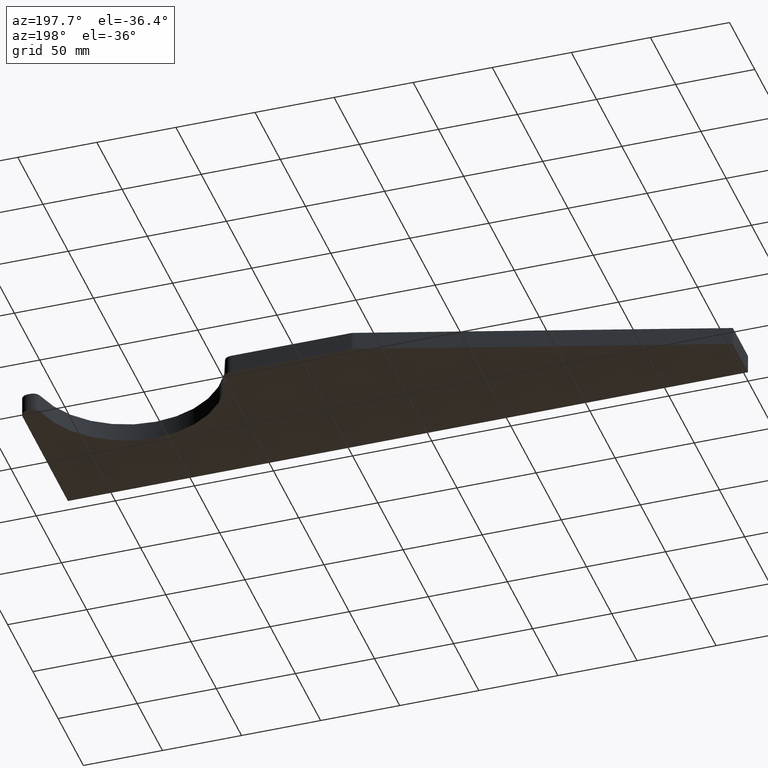
[diagram: clean part render]
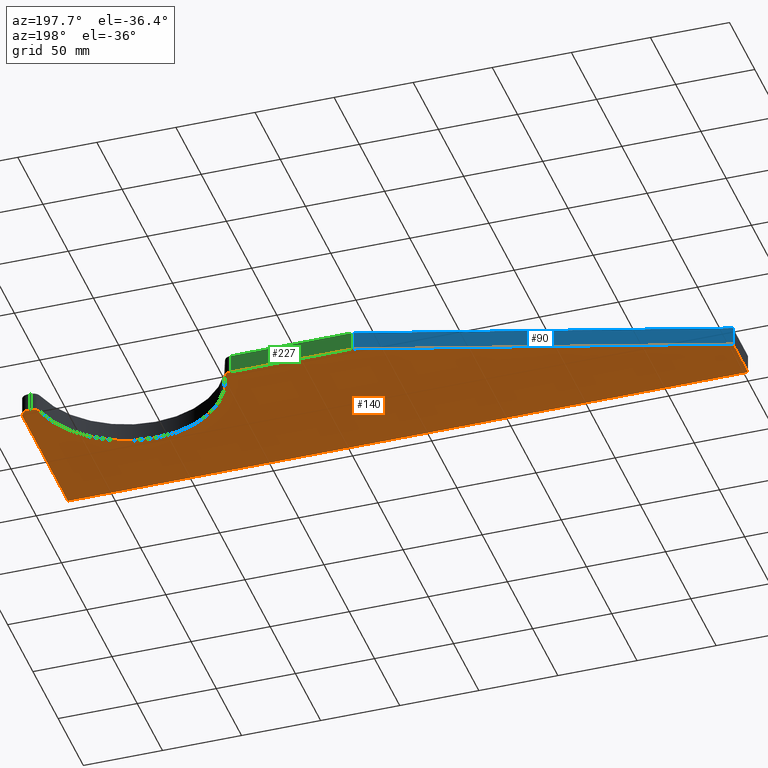
[diagram: same view with three faces highlighted in distinct colors, each labeled with its STEP entity id]
A machine part, auxiliary view with three faces highlighted in distinct colors.
Their STEP definitions:

[orange] entity #140 — the highlighted planar face has unit normal (0, 0, 1).
#1 = CARTESIAN_POINT ( 'NONE',  ( 220.7231842260838200, 89.99999999999997200, -6.000000000000000000 ) ) ;
#6 = CARTESIAN_POINT ( 'NONE',  ( 219.3064535209968000, 94.79508854029447200, -6.000000000000000000 ) ) ;
#11 = AXIS2_PLACEMENT_3D ( 'NONE', #428, #423, #422 ) ;
#16 = EDGE_CURVE ( 'NONE', #125, #181, #297, .T. ) ;
#20 = AXIS2_PLACEMENT_3D ( 'NONE', #137, #135, #131 ) ;
#22 = DIRECTION ( 'NONE',  ( -1.000000000000000000, 0.0000000000000000000, 0.0000000000000000000 ) ) ;
#30 = DIRECTION ( 'NONE',  ( 1.000000000000000000, 0.0000000000000000000, 0.0000000000000000000 ) ) ;
#33 = CARTESIAN_POINT ( 'NONE',  ( 0.0000000000000000000, 0.0000000000000000000, -6.000000000000000000 ) ) ;
#37 = CARTESIAN_POINT ( 'NONE',  ( 430.0000000000000000, 0.0000000000000000000, -6.000000000000000000 ) ) ;
#41 = EDGE_CURVE ( 'NONE', #181, #332, #342, .T. ) ;
#43 = CARTESIAN_POINT ( 'NONE',  ( 300.8392021690038400, 94.99999999999997200, -6.000000000000000000 ) ) ;
#51 = DIRECTION ( 'NONE',  ( 0.0000000000000000000, 0.0000000000000000000, 1.000000000000000000 ) ) ;
#60 = EDGE_CURVE ( 'NONE', #175, #193, #398, .T. ) ;
#78 = DIRECTION ( 'NONE',  ( -1.000000000000000000, 1.280332960990416700E-015, 0.0000000000000000000 ) ) ;
#80 = CARTESIAN_POINT ( 'NONE',  ( 360.0000000000000000, 105.0000000000000000, -6.000000000000000000 ) ) ;
#91 = ORIENTED_EDGE ( 'NONE', *, *, #151, .F. ) ;
#94 = DIRECTION ( 'NONE',  ( 1.000000000000000000, 0.0000000000000000000, -0.0000000000000000000 ) ) ;
#99 = DIRECTION ( 'NONE',  ( -4.082155997157845700E-017, -1.000000000000000000, 0.0000000000000000000 ) ) ;
#100 = CARTESIAN_POINT ( 'NONE',  ( 1.224646799147353700E-015, 30.00000000000000000, -6.000000000000000000 ) ) ;
#103 = AXIS2_PLACEMENT_3D ( 'NONE', #122, #119, #116 ) ;
#106 = PLANE ( 'NONE',  #194 ) ;
#116 = DIRECTION ( 'NONE',  ( 1.000000000000000000, -2.775557561562889000E-015, 0.0000000000000000000 ) ) ;
#117 = CARTESIAN_POINT ( 'NONE',  ( 1.224646799147353700E-015, 30.00000000000000000, -6.000000000000000000 ) ) ;
#119 = DIRECTION ( 'NONE',  ( -0.0000000000000000000, -0.0000000000000000000, -1.000000000000000000 ) ) ;
#121 = EDGE_CURVE ( 'NONE', #332, #256, #286, .T. ) ;
#122 = CARTESIAN_POINT ( 'NONE',  ( 423.2455532033675900, 90.00000000000000000, -6.000000000000000000 ) ) ;
#123 = CARTESIAN_POINT ( 'NONE',  ( 220.0000000000000000, 94.99999999999997200, -6.000000000000000000 ) ) ;
#125 = VERTEX_POINT ( 'NONE', #117 ) ;
#131 = DIRECTION ( 'NONE',  ( 1.000000000000000000, 0.0000000000000000000, 0.0000000000000000000 ) ) ;
#132 = DIRECTION ( 'NONE',  ( 1.000000000000000000, 0.0000000000000000000, 0.0000000000000000000 ) ) ;
#133 = EDGE_CURVE ( 'NONE', #442, #421, #279, .T. ) ;
#135 = DIRECTION ( 'NONE',  ( -0.0000000000000000000, -0.0000000000000000000, -1.000000000000000000 ) ) ;
#137 = CARTESIAN_POINT ( 'NONE',  ( 425.0000000000000000, 90.00000000000000000, -6.000000000000000000 ) ) ;
#138 = CARTESIAN_POINT ( 'NONE',  ( 296.7544467966324100, 89.99999999999997200, -6.000000000000000000 ) ) ;
#140 = ADVANCED_FACE ( 'NONE', ( #261 ), #106, .F. ) ;
#145 = DIRECTION ( 'NONE',  ( -0.9590177080589004100, -0.2833461410174023000, 0.0000000000000000000 ) ) ;
#150 = CARTESIAN_POINT ( 'NONE',  ( 430.0000000000000000, 95.00000000000000000, -6.000000000000000000 ) ) ;
#151 = EDGE_CURVE ( 'NONE', #290, #257, #252, .T. ) ;
#157 = DIRECTION ( 'NONE',  ( -0.0000000000000000000, -0.0000000000000000000, -1.000000000000000000 ) ) ;
#160 = CARTESIAN_POINT ( 'NONE',  ( 430.0000000000000000, 0.0000000000000000000, -6.000000000000000000 ) ) ;
#162 = CIRCLE ( 'NONE', #386, 5.000000000000004400 ) ;
#163 = CIRCLE ( 'NONE', #395, 5.000000000000004400 ) ;
#168 = EDGE_LOOP ( 'NONE', ( #352, #401, #216, #317, #91, #180, #255, #191, #325, #222, #346 ) ) ;
#175 = VERTEX_POINT ( 'NONE', #410 ) ;
#180 = ORIENTED_EDGE ( 'NONE', *, *, #307, .T. ) ;
#181 = VERTEX_POINT ( 'NONE', #350 ) ;
#191 = ORIENTED_EDGE ( 'NONE', *, *, #300, .T. ) ;
#193 = VERTEX_POINT ( 'NONE', #348 ) ;
#194 = AXIS2_PLACEMENT_3D ( 'NONE', #80, #51, #94 ) ;
#197 = CARTESIAN_POINT ( 'NONE',  ( 423.2455532033675900, 95.00000000000001400, -6.000000000000000000 ) ) ;
#200 = VECTOR ( 'NONE', #145, 1000.000000000000000 ) ;
#209 = CIRCLE ( 'NONE', #103, 5.000000000000004400 ) ;
#216 = ORIENTED_EDGE ( 'NONE', *, *, #60, .F. ) ;
#218 = LINE ( 'NONE', #123, #200 ) ;
#222 = ORIENTED_EDGE ( 'NONE', *, *, #41, .F. ) ;
#224 = CIRCLE ( 'NONE', #20, 5.000000000000004400 ) ;
#229 = VECTOR ( 'NONE', #22, 1000.000000000000000 ) ;
#247 = CARTESIAN_POINT ( 'NONE',  ( 418.3805106492623600, 91.15384615384617500, -6.000000000000000000 ) ) ;
#252 = CIRCLE ( 'NONE', #11, 60.00000000000000000 ) ;
#254 = DIRECTION ( 'NONE',  ( 1.000000000000000000, -2.775557561562889000E-015, 0.0000000000000000000 ) ) ;
#255 = ORIENTED_EDGE ( 'NONE', *, *, #133, .F. ) ;
#256 = VERTEX_POINT ( 'NONE', #262 ) ;
#257 = VERTEX_POINT ( 'NONE', #267 ) ;
#261 = FACE_OUTER_BOUND ( 'NONE', #168, .T. ) ;
#262 = CARTESIAN_POINT ( 'NONE',  ( 430.0000000000000000, 90.00000000000000000, -6.000000000000000000 ) ) ;
#263 = CARTESIAN_POINT ( 'NONE',  ( 425.0000000000000000, 95.00000000000000000, -6.000000000000000000 ) ) ;
#267 = CARTESIAN_POINT ( 'NONE',  ( 301.6194893507376400, 91.15384615384613200, -6.000000000000000000 ) ) ;
#268 = VECTOR ( 'NONE', #78, 1000.000000000000000 ) ;
#271 = VECTOR ( 'NONE', #304, 1000.000000000000000 ) ;
#273 = DIRECTION ( 'NONE',  ( -0.0000000000000000000, -0.0000000000000000000, -1.000000000000000000 ) ) ;
#279 = LINE ( 'NONE', #150, #268 ) ;
#286 = LINE ( 'NONE', #160, #271 ) ;
#290 = VERTEX_POINT ( 'NONE', #247 ) ;
#297 = LINE ( 'NONE', #100, #312 ) ;
#300 = EDGE_CURVE ( 'NONE', #442, #256, #224, .T. ) ;
#304 = DIRECTION ( 'NONE',  ( 0.0000000000000000000, 1.000000000000000000, 0.0000000000000000000 ) ) ;
#307 = EDGE_CURVE ( 'NONE', #290, #421, #209, .T. ) ;
#310 = EDGE_CURVE ( 'NONE', #376, #125, #218, .T. ) ;
#312 = VECTOR ( 'NONE', #99, 1000.000000000000000 ) ;
#317 = ORIENTED_EDGE ( 'NONE', *, *, #443, .T. ) ;
#325 = ORIENTED_EDGE ( 'NONE', *, *, #121, .F. ) ;
#332 = VERTEX_POINT ( 'NONE', #37 ) ;
#342 = LINE ( 'NONE', #33, #411 ) ;
#346 = ORIENTED_EDGE ( 'NONE', *, *, #16, .F. ) ;
#348 = CARTESIAN_POINT ( 'NONE',  ( 220.7231842260838200, 94.99999999999997200, -6.000000000000000000 ) ) ;
#350 = CARTESIAN_POINT ( 'NONE',  ( 0.0000000000000000000, 0.0000000000000000000, -6.000000000000000000 ) ) ;
#352 = ORIENTED_EDGE ( 'NONE', *, *, #310, .F. ) ;
#376 = VERTEX_POINT ( 'NONE', #6 ) ;
#386 = AXIS2_PLACEMENT_3D ( 'NONE', #138, #157, #132 ) ;
#395 = AXIS2_PLACEMENT_3D ( 'NONE', #1, #273, #254 ) ;
#396 = EDGE_CURVE ( 'NONE', #376, #193, #163, .T. ) ;
#398 = LINE ( 'NONE', #43, #229 ) ;
#401 = ORIENTED_EDGE ( 'NONE', *, *, #396, .T. ) ;
#410 = CARTESIAN_POINT ( 'NONE',  ( 296.7544467966324100, 94.99999999999997200, -6.000000000000000000 ) ) ;
#411 = VECTOR ( 'NONE', #30, 1000.000000000000000 ) ;
#421 = VERTEX_POINT ( 'NONE', #197 ) ;
#422 = DIRECTION ( 'NONE',  ( 1.000000000000000000, 0.0000000000000000000, 0.0000000000000000000 ) ) ;
#423 = DIRECTION ( 'NONE',  ( -0.0000000000000000000, -0.0000000000000000000, -1.000000000000000000 ) ) ;
#428 = CARTESIAN_POINT ( 'NONE',  ( 360.0000000000000000, 105.0000000000000000, -6.000000000000000000 ) ) ;
#442 = VERTEX_POINT ( 'NONE', #263 ) ;
#443 = EDGE_CURVE ( 'NONE', #175, #257, #162, .T. ) ;

[blue] entity #90 — the highlighted planar face has unit normal (0.2833, -0.959, 0).
#6 = CARTESIAN_POINT ( 'NONE',  ( 219.3064535209968000, 94.79508854029447200, -6.000000000000000000 ) ) ;
#63 = ORIENTED_EDGE ( 'NONE', *, *, #293, .T. ) ;
#90 = ADVANCED_FACE ( 'NONE', ( #288 ), #339, .F. ) ;
#110 = EDGE_CURVE ( 'NONE', #186, #125, #283, .T. ) ;
#111 = AXIS2_PLACEMENT_3D ( 'NONE', #316, #308, #305 ) ;
#114 = ORIENTED_EDGE ( 'NONE', *, *, #275, .F. ) ;
#117 = CARTESIAN_POINT ( 'NONE',  ( 1.224646799147353700E-015, 30.00000000000000000, -6.000000000000000000 ) ) ;
#123 = CARTESIAN_POINT ( 'NONE',  ( 220.0000000000000000, 94.99999999999997200, -6.000000000000000000 ) ) ;
#125 = VERTEX_POINT ( 'NONE', #117 ) ;
#144 = DIRECTION ( 'NONE',  ( -0.0000000000000000000, -0.0000000000000000000, -1.000000000000000000 ) ) ;
#145 = DIRECTION ( 'NONE',  ( -0.9590177080589004100, -0.2833461410174023000, 0.0000000000000000000 ) ) ;
#185 = CARTESIAN_POINT ( 'NONE',  ( 1.224646799147353700E-015, 30.00000000000000000, 6.000000000000000000 ) ) ;
#186 = VERTEX_POINT ( 'NONE', #351 ) ;
#192 = DIRECTION ( 'NONE',  ( 0.0000000000000000000, 0.0000000000000000000, -1.000000000000000000 ) ) ;
#198 = ORIENTED_EDGE ( 'NONE', *, *, #310, .T. ) ;
#200 = VECTOR ( 'NONE', #145, 1000.000000000000000 ) ;
#210 = CARTESIAN_POINT ( 'NONE',  ( 219.3064535209968000, 94.79508854029447200, 6.000000000000000000 ) ) ;
#214 = VECTOR ( 'NONE', #192, 1000.000000000000000 ) ;
#218 = LINE ( 'NONE', #123, #200 ) ;
#223 = VECTOR ( 'NONE', #258, 1000.000000000000000 ) ;
#228 = LINE ( 'NONE', #238, #214 ) ;
#231 = LINE ( 'NONE', #301, #223 ) ;
#238 = CARTESIAN_POINT ( 'NONE',  ( 219.3064535209968000, 94.79508854029447200, 6.000000000000000000 ) ) ;
#258 = DIRECTION ( 'NONE',  ( -0.9590177080589004100, -0.2833461410174023000, 0.0000000000000000000 ) ) ;
#275 = EDGE_CURVE ( 'NONE', #291, #186, #231, .T. ) ;
#280 = VECTOR ( 'NONE', #144, 1000.000000000000000 ) ;
#283 = LINE ( 'NONE', #185, #280 ) ;
#288 = FACE_OUTER_BOUND ( 'NONE', #408, .T. ) ;
#291 = VERTEX_POINT ( 'NONE', #210 ) ;
#293 = EDGE_CURVE ( 'NONE', #291, #376, #228, .T. ) ;
#301 = CARTESIAN_POINT ( 'NONE',  ( 220.0000000000000000, 94.99999999999997200, 6.000000000000000000 ) ) ;
#305 = DIRECTION ( 'NONE',  ( 0.9590177080589003000, 0.2833461410174023000, 0.0000000000000000000 ) ) ;
#308 = DIRECTION ( 'NONE',  ( 0.2833461410174023500, -0.9590177080589004100, 0.0000000000000000000 ) ) ;
#310 = EDGE_CURVE ( 'NONE', #376, #125, #218, .T. ) ;
#316 = CARTESIAN_POINT ( 'NONE',  ( 220.0000000000000000, 94.99999999999997200, 6.000000000000000000 ) ) ;
#339 = PLANE ( 'NONE',  #111 ) ;
#351 = CARTESIAN_POINT ( 'NONE',  ( 1.224646799147353700E-015, 30.00000000000000000, 6.000000000000000000 ) ) ;
#376 = VERTEX_POINT ( 'NONE', #6 ) ;
#408 = EDGE_LOOP ( 'NONE', ( #114, #63, #198, #414 ) ) ;
#414 = ORIENTED_EDGE ( 'NONE', *, *, #110, .F. ) ;

[green] entity #227 — the highlighted planar face has unit normal (0, -1, 0).
#5 = CARTESIAN_POINT ( 'NONE',  ( 220.7231842260838200, 94.99999999999997200, 6.000000000000000000 ) ) ;
#21 = AXIS2_PLACEMENT_3D ( 'NONE', #337, #313, #311 ) ;
#22 = DIRECTION ( 'NONE',  ( -1.000000000000000000, 0.0000000000000000000, 0.0000000000000000000 ) ) ;
#34 = CARTESIAN_POINT ( 'NONE',  ( 296.7544467966324100, 94.99999999999997200, 6.000000000000000000 ) ) ;
#38 = EDGE_LOOP ( 'NONE', ( #306, #161, #323, #427 ) ) ;
#43 = CARTESIAN_POINT ( 'NONE',  ( 300.8392021690038400, 94.99999999999997200, -6.000000000000000000 ) ) ;
#60 = EDGE_CURVE ( 'NONE', #175, #193, #398, .T. ) ;
#161 = ORIENTED_EDGE ( 'NONE', *, *, #176, .T. ) ;
#175 = VERTEX_POINT ( 'NONE', #410 ) ;
#176 = EDGE_CURVE ( 'NONE', #193, #371, #244, .T. ) ;
#193 = VERTEX_POINT ( 'NONE', #348 ) ;
#225 = VECTOR ( 'NONE', #331, 1000.000000000000000 ) ;
#227 = ADVANCED_FACE ( 'NONE', ( #245 ), #319, .F. ) ;
#229 = VECTOR ( 'NONE', #22, 1000.000000000000000 ) ;
#230 = LINE ( 'NONE', #298, #240 ) ;
#233 = LINE ( 'NONE', #302, #225 ) ;
#237 = EDGE_CURVE ( 'NONE', #345, #371, #230, .T. ) ;
#240 = VECTOR ( 'NONE', #276, 1000.000000000000000 ) ;
#241 = VECTOR ( 'NONE', #382, 1000.000000000000000 ) ;
#243 = EDGE_CURVE ( 'NONE', #345, #175, #233, .T. ) ;
#244 = LINE ( 'NONE', #435, #241 ) ;
#245 = FACE_OUTER_BOUND ( 'NONE', #38, .T. ) ;
#276 = DIRECTION ( 'NONE',  ( -1.000000000000000000, 0.0000000000000000000, 0.0000000000000000000 ) ) ;
#298 = CARTESIAN_POINT ( 'NONE',  ( 300.8392021690038400, 94.99999999999997200, 6.000000000000000000 ) ) ;
#302 = CARTESIAN_POINT ( 'NONE',  ( 296.7544467966324100, 94.99999999999997200, 6.000000000000000000 ) ) ;
#306 = ORIENTED_EDGE ( 'NONE', *, *, #60, .T. ) ;
#311 = DIRECTION ( 'NONE',  ( 0.0000000000000000000, -0.0000000000000000000, -1.000000000000000000 ) ) ;
#313 = DIRECTION ( 'NONE',  ( 0.0000000000000000000, -1.000000000000000000, 0.0000000000000000000 ) ) ;
#319 = PLANE ( 'NONE',  #21 ) ;
#323 = ORIENTED_EDGE ( 'NONE', *, *, #237, .F. ) ;
#331 = DIRECTION ( 'NONE',  ( 0.0000000000000000000, 0.0000000000000000000, -1.000000000000000000 ) ) ;
#337 = CARTESIAN_POINT ( 'NONE',  ( 300.8392021690038400, 94.99999999999997200, 6.000000000000000000 ) ) ;
#345 = VERTEX_POINT ( 'NONE', #34 ) ;
#348 = CARTESIAN_POINT ( 'NONE',  ( 220.7231842260838200, 94.99999999999997200, -6.000000000000000000 ) ) ;
#371 = VERTEX_POINT ( 'NONE', #5 ) ;
#382 = DIRECTION ( 'NONE',  ( -0.0000000000000000000, -0.0000000000000000000, 1.000000000000000000 ) ) ;
#398 = LINE ( 'NONE', #43, #229 ) ;
#410 = CARTESIAN_POINT ( 'NONE',  ( 296.7544467966324100, 94.99999999999997200, -6.000000000000000000 ) ) ;
#427 = ORIENTED_EDGE ( 'NONE', *, *, #243, .T. ) ;
#435 = CARTESIAN_POINT ( 'NONE',  ( 220.7231842260838200, 94.99999999999997200, 6.000000000000000000 ) ) ;